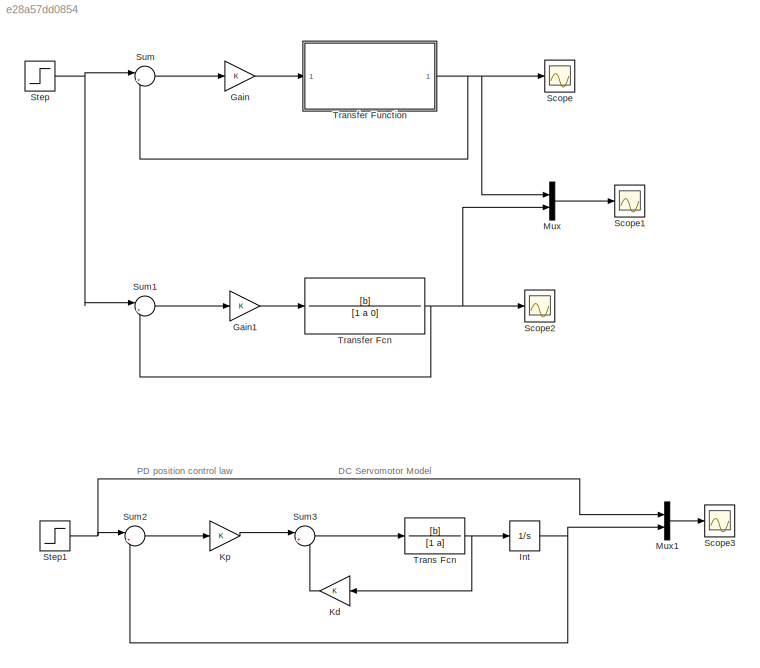
MODEL slx_e28a57dd0854
KIND model
CONFIG AbsTol = auto
CONFIG EnableMultiTasking = off
CONFIG FixedStep = auto
CONFIG MaxStep = auto
CONFIG MinStep = auto
CONFIG RelTol = 1e-3
CONFIG SampleTimeConstraint = Unconstrained
CONFIG SolverName = VariableStepAuto
CONFIG StartTime = 0.0
CONFIG StopTime = 50.0
BLOCK [Gain] Gain
BLOCK [Gain] Gain1
BLOCK [Integrator] Int
BLOCK [Gain] Kd
BLOCK [Gain] Kp
BLOCK [Mux] Mux
  DisplayOption = bar
  Inputs = 2
BLOCK [Mux] Mux1
  DisplayOption = bar
  Inputs = 2
BLOCK [Scope] Scope
  Floating = off
  NumInputPorts = 1
  ScopeSpecificationString = Simulink.scopes.TimeScopeBlockCfg('CurrentConfiguration', extmgr.ConfigurationSet(extmgr.Configuration('Core','General UI',true),extmgr.Configuration('Core','Source UI',true),extmgr.Configuration('Sources','WiredSimulink',true),extmgr.Configuration('Visuals','Time Domain',true,'SerializedDisplays',{struct('MinYLimReal','-0.12374','MaxYLimReal','1.11366','YLabelReal','','MinYLimMag','0.00000','MaxY...<+1426ch>
BLOCK [Scope] Scope1
  Floating = off
  NumInputPorts = 1
  ScopeSpecificationString = Simulink.scopes.TimeScopeBlockCfg('CurrentConfiguration', extmgr.ConfigurationSet(extmgr.Configuration('Core','General UI',true),extmgr.Configuration('Core','Source UI',true),extmgr.Configuration('Sources','WiredSimulink',true,'DataLoggingVariableName','ScopeData1'),extmgr.Configuration('Visuals','Time Domain',true,'SerializedDisplays',{struct('MinYLimReal','-0.12374','MaxYLimReal','1.11366','YLab...<+1480ch>
BLOCK [Scope] Scope2
  Floating = off
  NumInputPorts = 1
  ScopeSpecificationString = Simulink.scopes.TimeScopeBlockCfg('CurrentConfiguration', extmgr.ConfigurationSet(extmgr.Configuration('Core','General UI',true),extmgr.Configuration('Core','Source UI',true),extmgr.Configuration('Sources','WiredSimulink',true,'DataLoggingVariableName','ScopeData2'),extmgr.Configuration('Visuals','Time Domain',true),extmgr.Configuration('Tools','Plot Navigation',true),extmgr.Configuration('Tools',...<+40ch>
BLOCK [Scope] Scope3
  Floating = off
  NumInputPorts = 1
  ScopeSpecificationString = Simulink.scopes.TimeScopeBlockCfg('CurrentConfiguration', extmgr.ConfigurationSet(extmgr.Configuration('Core','General UI',true),extmgr.Configuration('Core','Source UI',true),extmgr.Configuration('Sources','WiredSimulink',true,'DataLoggingVariableName','ScopeData3'),extmgr.Configuration('Visuals','Time Domain',true,'SerializedDisplays',{struct('MinYLimReal','-0.125','MaxYLimReal','1.125','YLabelRe...<+1447ch>
BLOCK [Step] Step
  SampleTime = 0
BLOCK [Step] Step1
  SampleTime = 0
BLOCK [Sum] Sum
  Inputs = |+-
BLOCK [Sum] Sum1
  Inputs = |+-
BLOCK [Sum] Sum2
  Inputs = |+-
BLOCK [Sum] Sum3
  Inputs = |++
BLOCK [TransferFcn] Trans Fcn
  Denominator = [1 a]
  Numerator = [b]
BLOCK [TransferFcn] Transfer Fcn
  Denominator = [1 a 0]
  Numerator = [b]
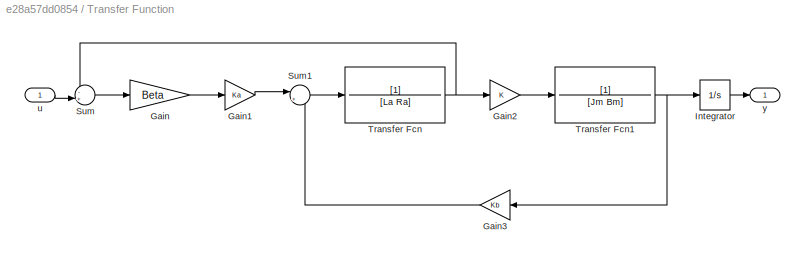
BLOCK [SubSystem] Transfer Function
BLOCK [Gain] Transfer Function/Gain
  Gain = Beta
BLOCK [Gain] Transfer Function/Gain1
  Gain = Ka
BLOCK [Gain] Transfer Function/Gain2
  Gain = K
BLOCK [Gain] Transfer Function/Gain3
  Gain = Kb
BLOCK [Integrator] Transfer Function/Integrator
BLOCK [Sum] Transfer Function/Sum
  Inputs = -+|
BLOCK [Sum] Transfer Function/Sum1
  Inputs = |+-
BLOCK [TransferFcn] Transfer Function/Transfer Fcn
  Denominator = [La Ra]
BLOCK [TransferFcn] Transfer Function/Transfer Fcn1
  Denominator = [Jm Bm]
BLOCK [Inport] Transfer Function/u
BLOCK [Outport] Transfer Function/y
ANNOTATION (root): DC Servomotor Model
ANNOTATION (root): PD position control law
LINE Gain1:1 -> Transfer Fcn:1
LINE Gain:1 -> Transfer Function:1
NET Int:1 -> Mux1:2, Sum2:2
LINE Kd:1 -> Sum3:2
LINE Kp:1 -> Sum3:1
LINE Mux1:1 -> Scope3:1
LINE Mux:1 -> Scope1:1
NET Step1:1 -> Mux1:1, Sum2:1
NET Step:1 -> Sum1:1, Sum:1
LINE Sum1:1 -> Gain1:1
LINE Sum2:1 -> Kp:1
LINE Sum3:1 -> Trans Fcn:1
LINE Sum:1 -> Gain:1
NET Trans Fcn:1 -> Int:1, Kd:1
NET Transfer Fcn:1 -> Mux:2, Scope2:1, Sum1:2
LINE Transfer Function/Gain1:1 -> Transfer Function/Sum1:1
LINE Transfer Function/Gain2:1 -> Transfer Function/Transfer Fcn1:1
LINE Transfer Function/Gain3:1 -> Transfer Function/Sum1:2
LINE Transfer Function/Gain:1 -> Transfer Function/Gain1:1
LINE Transfer Function/Integrator:1 -> Transfer Function/y:1
LINE Transfer Function/Sum1:1 -> Transfer Function/Transfer Fcn:1
LINE Transfer Function/Sum:1 -> Transfer Function/Gain:1
NET Transfer Function/Transfer Fcn1:1 -> Transfer Function/Gain3:1, Transfer Function/Integrator:1
NET Transfer Function/Transfer Fcn:1 -> Transfer Function/Gain2:1, Transfer Function/Sum:1
LINE Transfer Function/u:1 -> Transfer Function/Sum:2
NET Transfer Function:1 -> Mux:1, Scope:1, Sum:2
note: NET lines group one-source signal fan-out (src -> all destinations, sorted); 1:1 wires keep LINE
